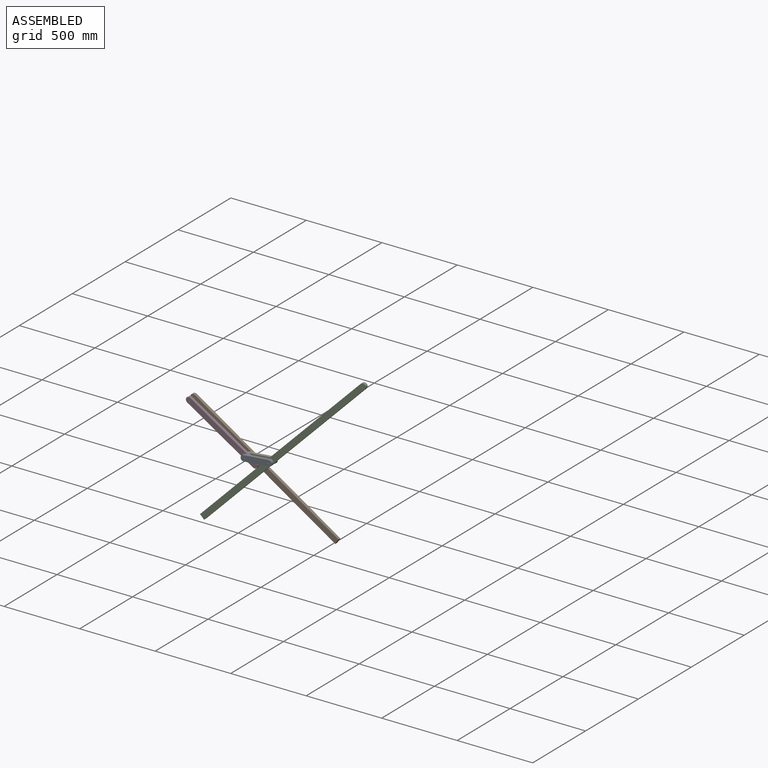
[diagram: assembled view]
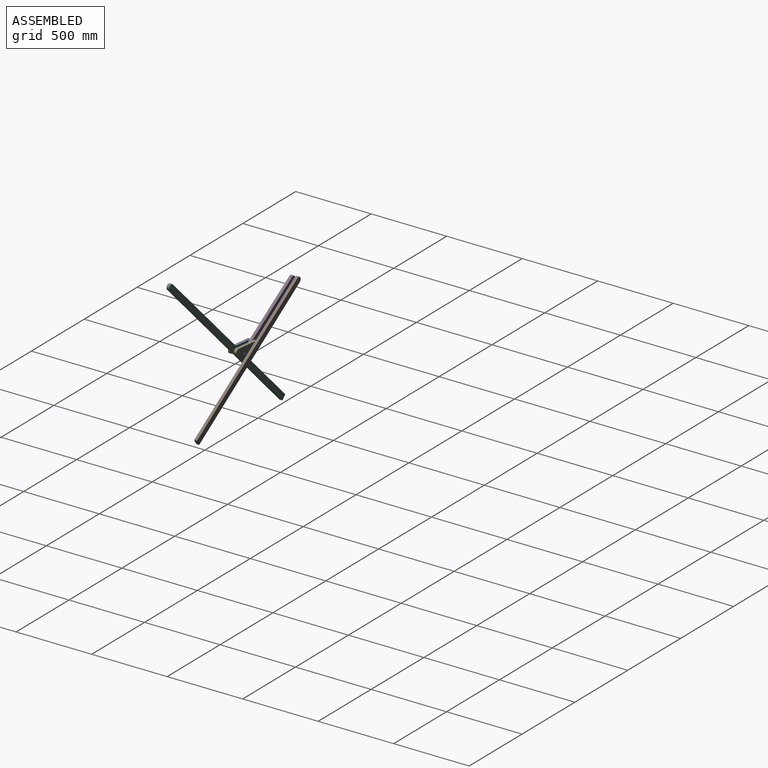
[diagram: assembled view, second angle]
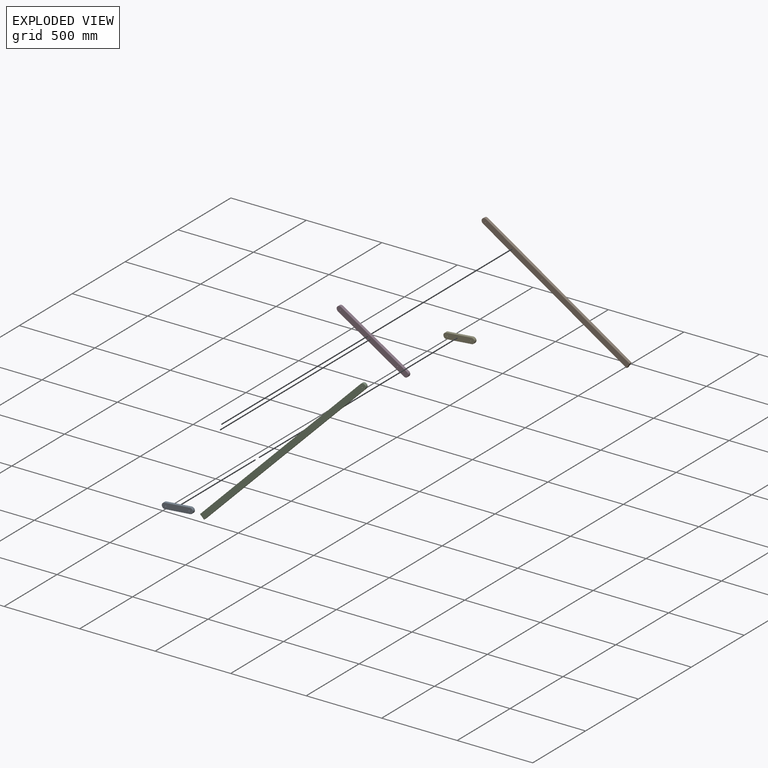
[diagram: exploded view]
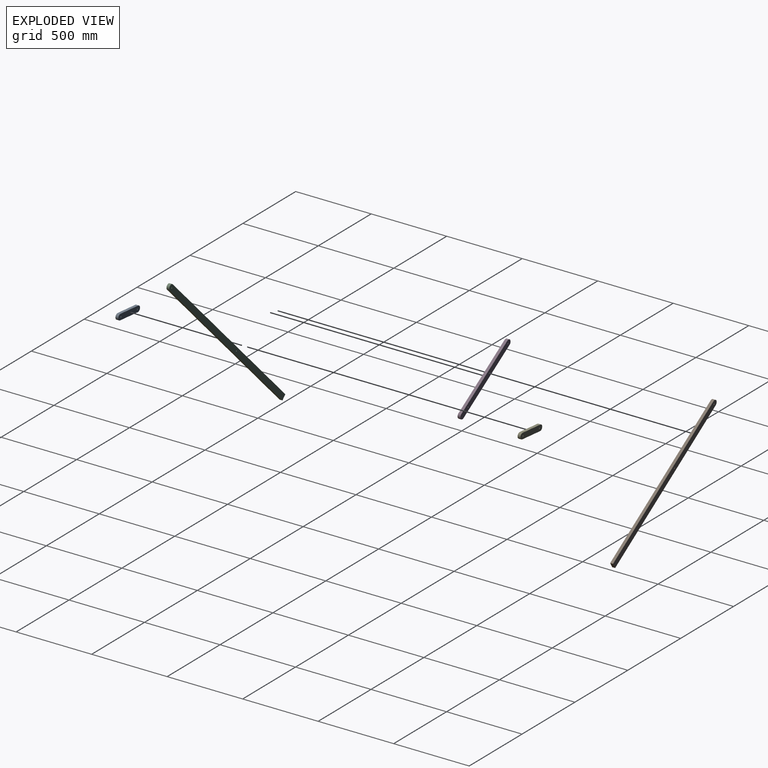
[diagram: exploded view, second angle]
ASSEMBLY  parts=5 mates=4
PART A: 8 faces, bbox 212.1x19.1x38.1 mm
  f0: plane 168.28x19.05mm, normal (0,0,1), area 3205.6mm2, adj f1,f5,f6,f7
  f1: extruded ~38.1x19.05mm, area 1140.1mm2, adj f0,f2,f6,f7
  f2: plane 168.28x19.05mm, normal (0,0,-1), area 3205.6mm2, adj f1,f5,f6,f7
  f3: cylinder r=3.17mm len=19.05mm, axis (0,1,0), area 380mm2, adj f6,f7
  f4: cylinder r=3.17mm len=19.05mm, axis (0,1,0), area 380mm2, adj f6,f7
  f5: cylinder r=19.05mm len=38.1mm, axis (0,1,0), area 1140.1mm2, adj f0,f2,f6,f7
  f6: plane 212.09x38.1mm, normal (0,-1,0), area 7488mm2, adj f0,f1,f2,f3,f4,f5
  f7: plane 212.09x38.1mm, normal (0,1,0), area 7488mm2, adj f0,f1,f2,f3,f4,f5
PART B: 8 faces, bbox 1149.4x19.1x38.1 mm
  f0: plane 1130.3x19.05mm, normal (0,0,-1), area 21532.2mm2, adj f1,f5,f6,f7
  f1: plane 38.1x19.05mm, normal (1,0,0), area 725.8mm2, adj f0,f2,f6,f7
  f2: plane 1130.3x19.05mm, normal (0,0,1), area 21532.2mm2, adj f1,f5,f6,f7
  f3: cylinder r=3.17mm len=19.05mm, axis (0,1,0), area 380mm2, adj f6,f7
  f4: cylinder r=3.17mm len=19.05mm, axis (0,1,0), area 380mm2, adj f6,f7
  f5: cylinder r=19.05mm len=38.1mm, axis (0,1,0), area 1140.1mm2, adj f0,f2,f6,f7
  f6: plane 1149.35x38.1mm, normal (0,-1,0), area 43571.1mm2, adj f0,f1,f2,f3,f4,f5
  f7: plane 1149.35x38.1mm, normal (0,1,0), area 43571.1mm2, adj f0,f1,f2,f3,f4,f5
PART C: 8 faces, bbox 1524x19.1x38.1 mm
  f0: plane 38.1x19.05mm, normal (-1,0,0), area 725.8mm2, adj f1,f3,f5,f6
  f1: plane 1504.95x19.05mm, normal (0,0,-1), area 28669.3mm2, adj f0,f5,f6,f7
  f2: cylinder r=3.17mm len=19.05mm, axis (0,1,0), area 380mm2, adj f5,f6
  f3: plane 1504.95x19.05mm, normal (0,0,1), area 28669.3mm2, adj f0,f5,f6,f7
  f4: cylinder r=3.17mm len=19.05mm, axis (0,1,0), area 380mm2, adj f5,f6
  f5: plane 1524x38.1mm, normal (0,-1,0), area 57845.3mm2, adj f0,f1,f2,f3,f4,f7
  f6: plane 1524x38.1mm, normal (0,1,0), area 57845.3mm2, adj f0,f1,f2,f3,f4,f7
  f7: cylinder r=19.05mm len=38.1mm, axis (0,-1,0), area 1140.1mm2, adj f1,f3,f5,f6
PART D: 8 faces, bbox 552.5x19.1x38.1 mm
  f0: plane 514.35x19.05mm, normal (0,0,1), area 9798.4mm2, adj f1,f5,f6,f7
  f1: cylinder r=19.05mm len=38.1mm, axis (0,1,0), area 1140.1mm2, adj f0,f2,f6,f7
  f2: plane 514.35x19.05mm, normal (0,0,-1), area 9798.4mm2, adj f1,f5,f6,f7
  f3: cylinder r=3.17mm len=19.05mm, axis (0,1,0), area 380mm2, adj f6,f7
  f4: cylinder r=3.17mm len=19.05mm, axis (0,1,0), area 380mm2, adj f6,f7
  f5: cylinder r=19.05mm len=38.1mm, axis (0,1,0), area 1140.1mm2, adj f0,f2,f6,f7
  f6: plane 552.45x38.1mm, normal (0,-1,0), area 20673.5mm2, adj f0,f1,f2,f3,f4,f5
  f7: plane 552.45x38.1mm, normal (0,1,0), area 20673.5mm2, adj f0,f1,f2,f3,f4,f5
PART E: same geometry as A
PLACE A rot(axis=(0,-1,0),5deg) t=(138.58,-9.53,-152)mm
PLACE B rot(axis=(0,1,0),32.7deg) t=(157.27,47.62,-220.54)mm
PLACE C rot(axis=(0,-1,0),45deg) t=(305.88,9.52,-55.41)mm fixed
PLACE D rot(axis=(0,1,0),32deg) t=(-103.09,9.52,-56.04)mm
PLACE E rot(axis=(0,-1,0),5deg) t=(138.58,28.57,-151.94)mm
MATE cylindrical E.f3 <-> D.f4  axis (0,-1,0) through (61.09,9.52,-158.78)mm
MATE cylindrical B.f4 <-> E.f3  axis (0,-1,0) through (61.09,28.57,-158.78)mm
MATE cylindrical A.f4 <-> C.f4  axis (0,1,0) through (216.07,-9.53,-145.22)mm
MATE cylindrical D.f4 <-> A.f3  axis (0,-1,0) through (61.09,-9.53,-158.78)mm
